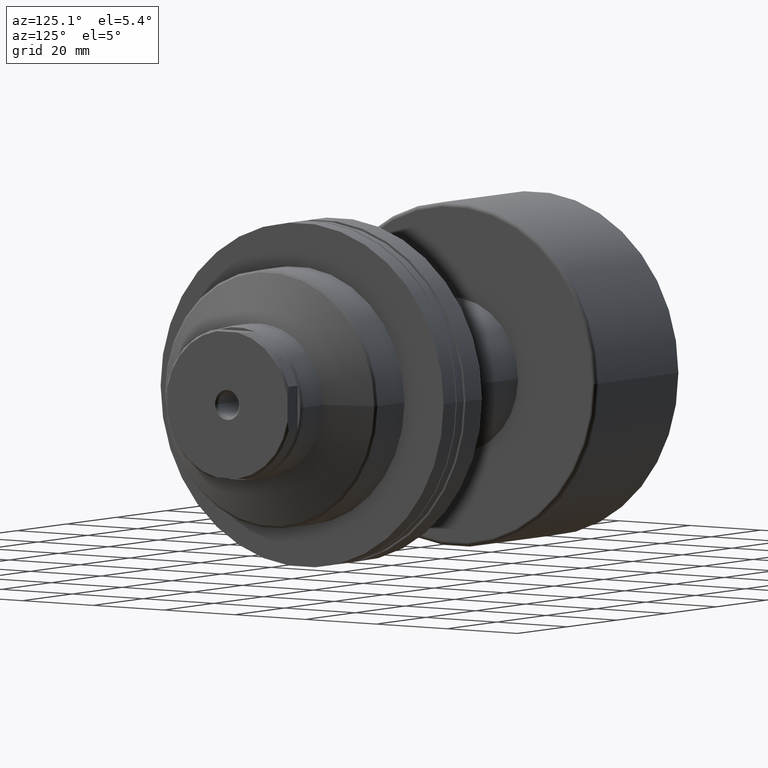
[diagram: clean part render]
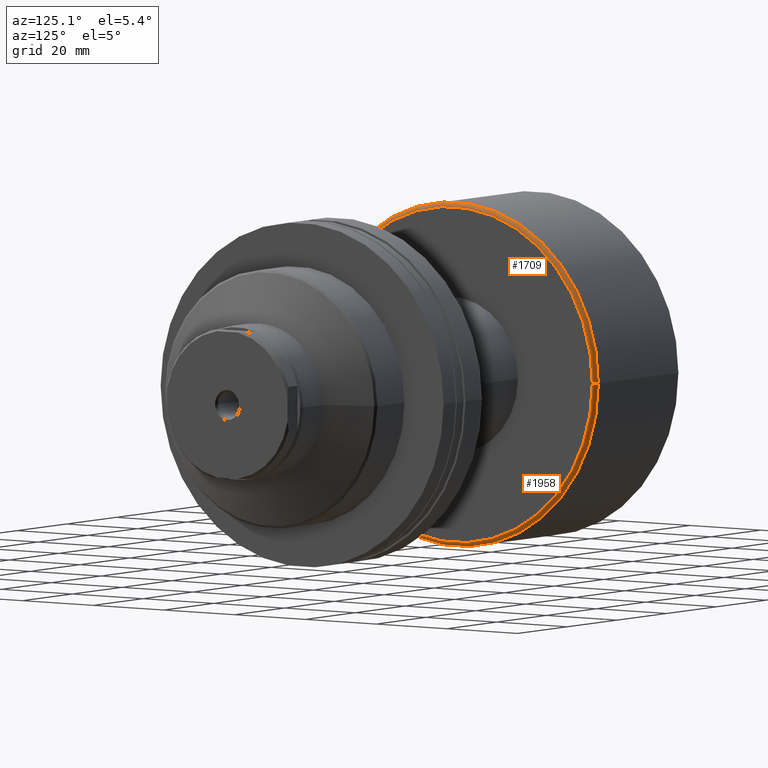
[diagram: same view with one multi-face feature highlighted, each face labeled with its STEP entity id]
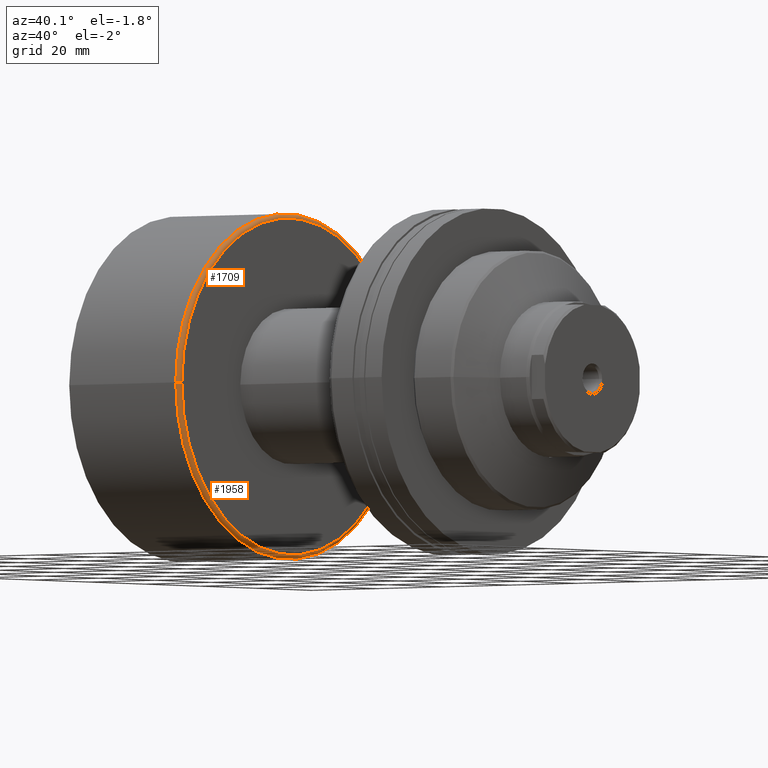
[diagram: same view with one multi-face feature highlighted, each face labeled with its STEP entity id]
A machine part, auxiliary view. The highlighted faces form ONE feature: a constant-radius fillet chain: 2 tangent blend faces with common blend radius 1 mm. The faces share edges in the B-rep.
A second angle (auxiliary view) of the same feature is appended — it is thin or edge-on in the first view.
Their STEP definitions:
[1] entity #1709 (Torus):
#52 = EDGE_CURVE ( 'NONE', #1141, #729, #2284, .T. ) ;
#55 = CIRCLE ( 'NONE', #642, 39.99999999999999289 ) ;
#152 = CARTESIAN_POINT ( 'NONE',  ( 33.70000000000000284, -39.99999999999999289, 0.000000000000000000 ) ) ;
#153 = CIRCLE ( 'NONE', #227, 1.000000000000000888 ) ;
#199 = CARTESIAN_POINT ( 'NONE',  ( 34.70000000000000284, 38.99999999999999289, 4.837354856632044663E-15 ) ) ;
#212 = TOROIDAL_SURFACE ( 'NONE', #1535, 38.99999999999999289, 1.000000000000000888 ) ;
#227 = AXIS2_PLACEMENT_3D ( 'NONE', #374, #1633, #1258 ) ;
#268 = EDGE_LOOP ( 'NONE', ( #1895, #947, #1024, #1347 ) ) ;
#347 = EDGE_CURVE ( 'NONE', #1141, #2166, #153, .T. ) ;
#374 = CARTESIAN_POINT ( 'NONE',  ( 33.70000000000000284, -38.99999999999999289, 0.000000000000000000 ) ) ;
#399 = DIRECTION ( 'NONE',  ( 0.000000000000000000, -1.000000000000000000, 0.000000000000000000 ) ) ;
#484 = CARTESIAN_POINT ( 'NONE',  ( 34.70000000000000284, 3.711311857579658694E-16, 0.000000000000000000 ) ) ;
#642 = AXIS2_PLACEMENT_3D ( 'NONE', #1279, #911, #399 ) ;
#646 = AXIS2_PLACEMENT_3D ( 'NONE', #1429, #2141, #2315 ) ;
#663 = CARTESIAN_POINT ( 'NONE',  ( 33.70000000000000284, 0.000000000000000000, 0.000000000000000000 ) ) ;
#718 = CARTESIAN_POINT ( 'NONE',  ( 34.70000000000000284, -38.99999999999999289, 0.000000000000000000 ) ) ;
#729 = VERTEX_POINT ( 'NONE', #199 ) ;
#741 = EDGE_CURVE ( 'NONE', #2166, #2244, #55, .T. ) ;
#896 = CARTESIAN_POINT ( 'NONE',  ( 33.70000000000000284, 39.99999999999999289, 4.898587196589412237E-15 ) ) ;
#911 = DIRECTION ( 'NONE',  ( -1.000000000000000000, -1.069542322069065801E-17, -0.000000000000000000 ) ) ;
#947 = ORIENTED_EDGE ( 'NONE', *, *, #1118, .T. ) ;
#1024 = ORIENTED_EDGE ( 'NONE', *, *, #741, .F. ) ;
#1118 = EDGE_CURVE ( 'NONE', #729, #2244, #1300, .T. ) ;
#1141 = VERTEX_POINT ( 'NONE', #718 ) ;
#1234 = FACE_OUTER_BOUND ( 'NONE', #268, .T. ) ;
#1258 = DIRECTION ( 'NONE',  ( -1.000000000000000000, 0.000000000000000000, 0.000000000000000000 ) ) ;
#1279 = CARTESIAN_POINT ( 'NONE',  ( 33.70000000000000284, 3.604357625372751759E-16, 0.000000000000000000 ) ) ;
#1300 = CIRCLE ( 'NONE', #646, 1.000000000000000888 ) ;
#1347 = ORIENTED_EDGE ( 'NONE', *, *, #347, .F. ) ;
#1429 = CARTESIAN_POINT ( 'NONE',  ( 33.70000000000000284, 38.99999999999999289, 4.776122516674677089E-15 ) ) ;
#1434 = AXIS2_PLACEMENT_3D ( 'NONE', #484, #2105, #2263 ) ;
#1535 = AXIS2_PLACEMENT_3D ( 'NONE', #663, #1603, #2114 ) ;
#1603 = DIRECTION ( 'NONE',  ( -1.000000000000000000, -1.069542322069065801E-17, -0.000000000000000000 ) ) ;
#1633 = DIRECTION ( 'NONE',  ( 0.000000000000000000, 0.000000000000000000, -1.000000000000000000 ) ) ;
#1709 = ADVANCED_FACE ( 'NONE', ( #1234 ), #212, .T. ) ;
#1895 = ORIENTED_EDGE ( 'NONE', *, *, #52, .T. ) ;
#2105 = DIRECTION ( 'NONE',  ( -1.000000000000000000, -1.069542322069065801E-17, -0.000000000000000000 ) ) ;
#2114 = DIRECTION ( 'NONE',  ( 1.069542322069065801E-17, -1.000000000000000000, 0.000000000000000000 ) ) ;
#2141 = DIRECTION ( 'NONE',  ( 1.309811581274509052E-33, -1.224646799147353207E-16, 1.000000000000000000 ) ) ;
#2166 = VERTEX_POINT ( 'NONE', #152 ) ;
#2244 = VERTEX_POINT ( 'NONE', #896 ) ;
#2263 = DIRECTION ( 'NONE',  ( 0.000000000000000000, -1.000000000000000000, 0.000000000000000000 ) ) ;
#2284 = CIRCLE ( 'NONE', #1434, 38.99999999999999289 ) ;
#2315 = DIRECTION ( 'NONE',  ( 0.000000000000000000, -1.000000000000000000, -1.224646799147357151E-16 ) ) ;
[2] entity #1958 (Torus):
#64 = CIRCLE ( 'NONE', #1659, 39.99999999999999289 ) ;
#152 = CARTESIAN_POINT ( 'NONE',  ( 33.70000000000000284, -39.99999999999999289, 0.000000000000000000 ) ) ;
#153 = CIRCLE ( 'NONE', #227, 1.000000000000000888 ) ;
#169 = TOROIDAL_SURFACE ( 'NONE', #320, 38.99999999999999289, 1.000000000000000888 ) ;
#199 = CARTESIAN_POINT ( 'NONE',  ( 34.70000000000000284, 38.99999999999999289, 4.837354856632044663E-15 ) ) ;
#227 = AXIS2_PLACEMENT_3D ( 'NONE', #374, #1633, #1258 ) ;
#320 = AXIS2_PLACEMENT_3D ( 'NONE', #1513, #1154, #1172 ) ;
#347 = EDGE_CURVE ( 'NONE', #1141, #2166, #153, .T. ) ;
#366 = ORIENTED_EDGE ( 'NONE', *, *, #1118, .F. ) ;
#374 = CARTESIAN_POINT ( 'NONE',  ( 33.70000000000000284, -38.99999999999999289, 0.000000000000000000 ) ) ;
#491 = ORIENTED_EDGE ( 'NONE', *, *, #2197, .F. ) ;
#541 = CIRCLE ( 'NONE', #655, 38.99999999999999289 ) ;
#571 = ORIENTED_EDGE ( 'NONE', *, *, #2130, .T. ) ;
#646 = AXIS2_PLACEMENT_3D ( 'NONE', #1429, #2141, #2315 ) ;
#655 = AXIS2_PLACEMENT_3D ( 'NONE', #1200, #1954, #999 ) ;
#718 = CARTESIAN_POINT ( 'NONE',  ( 34.70000000000000284, -38.99999999999999289, 0.000000000000000000 ) ) ;
#729 = VERTEX_POINT ( 'NONE', #199 ) ;
#896 = CARTESIAN_POINT ( 'NONE',  ( 33.70000000000000284, 39.99999999999999289, 4.898587196589412237E-15 ) ) ;
#999 = DIRECTION ( 'NONE',  ( 0.000000000000000000, -1.000000000000000000, 0.000000000000000000 ) ) ;
#1094 = CARTESIAN_POINT ( 'NONE',  ( 33.70000000000000284, 3.604357625372751759E-16, 0.000000000000000000 ) ) ;
#1118 = EDGE_CURVE ( 'NONE', #729, #2244, #1300, .T. ) ;
#1141 = VERTEX_POINT ( 'NONE', #718 ) ;
#1154 = DIRECTION ( 'NONE',  ( -1.000000000000000000, -1.069542322069065801E-17, -0.000000000000000000 ) ) ;
#1172 = DIRECTION ( 'NONE',  ( 1.069542322069065801E-17, -1.000000000000000000, 0.000000000000000000 ) ) ;
#1200 = CARTESIAN_POINT ( 'NONE',  ( 34.70000000000000284, 3.711311857579658694E-16, 0.000000000000000000 ) ) ;
#1258 = DIRECTION ( 'NONE',  ( -1.000000000000000000, 0.000000000000000000, 0.000000000000000000 ) ) ;
#1300 = CIRCLE ( 'NONE', #646, 1.000000000000000888 ) ;
#1429 = CARTESIAN_POINT ( 'NONE',  ( 33.70000000000000284, 38.99999999999999289, 4.776122516674677089E-15 ) ) ;
#1513 = CARTESIAN_POINT ( 'NONE',  ( 33.70000000000000284, 0.000000000000000000, 0.000000000000000000 ) ) ;
#1633 = DIRECTION ( 'NONE',  ( 0.000000000000000000, 0.000000000000000000, -1.000000000000000000 ) ) ;
#1659 = AXIS2_PLACEMENT_3D ( 'NONE', #1094, #1796, #1784 ) ;
#1784 = DIRECTION ( 'NONE',  ( 0.000000000000000000, -1.000000000000000000, 0.000000000000000000 ) ) ;
#1796 = DIRECTION ( 'NONE',  ( -1.000000000000000000, -1.069542322069065801E-17, -0.000000000000000000 ) ) ;
#1809 = FACE_OUTER_BOUND ( 'NONE', #2109, .T. ) ;
#1954 = DIRECTION ( 'NONE',  ( -1.000000000000000000, -1.069542322069065801E-17, -0.000000000000000000 ) ) ;
#1958 = ADVANCED_FACE ( 'NONE', ( #1809 ), #169, .T. ) ;
#2109 = EDGE_LOOP ( 'NONE', ( #366, #571, #2208, #491 ) ) ;
#2130 = EDGE_CURVE ( 'NONE', #729, #1141, #541, .T. ) ;
#2141 = DIRECTION ( 'NONE',  ( 1.309811581274509052E-33, -1.224646799147353207E-16, 1.000000000000000000 ) ) ;
#2166 = VERTEX_POINT ( 'NONE', #152 ) ;
#2197 = EDGE_CURVE ( 'NONE', #2244, #2166, #64, .T. ) ;
#2208 = ORIENTED_EDGE ( 'NONE', *, *, #347, .T. ) ;
#2244 = VERTEX_POINT ( 'NONE', #896 ) ;
#2315 = DIRECTION ( 'NONE',  ( 0.000000000000000000, -1.000000000000000000, -1.224646799147357151E-16 ) ) ;